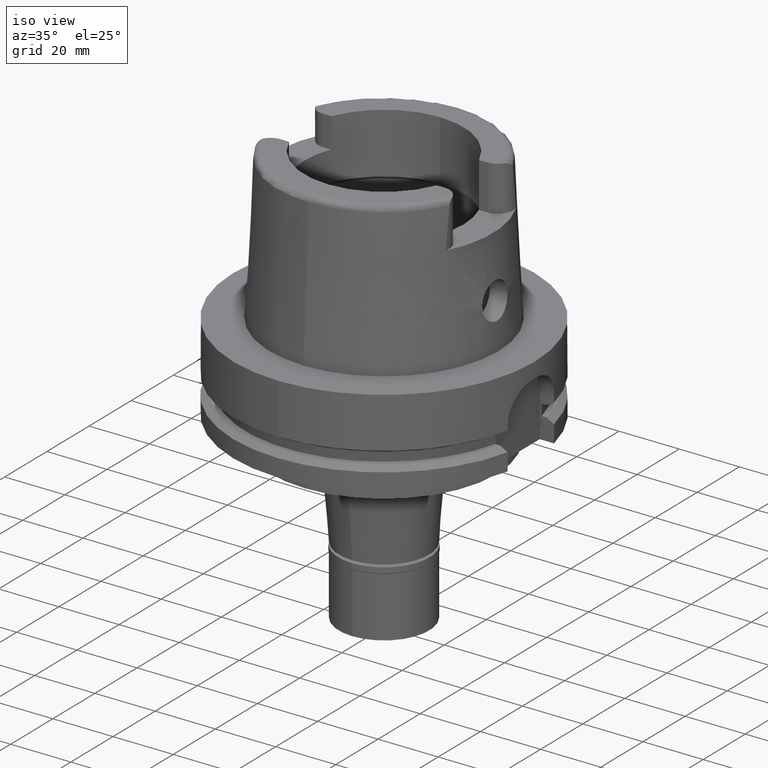
[diagram: clean part render]
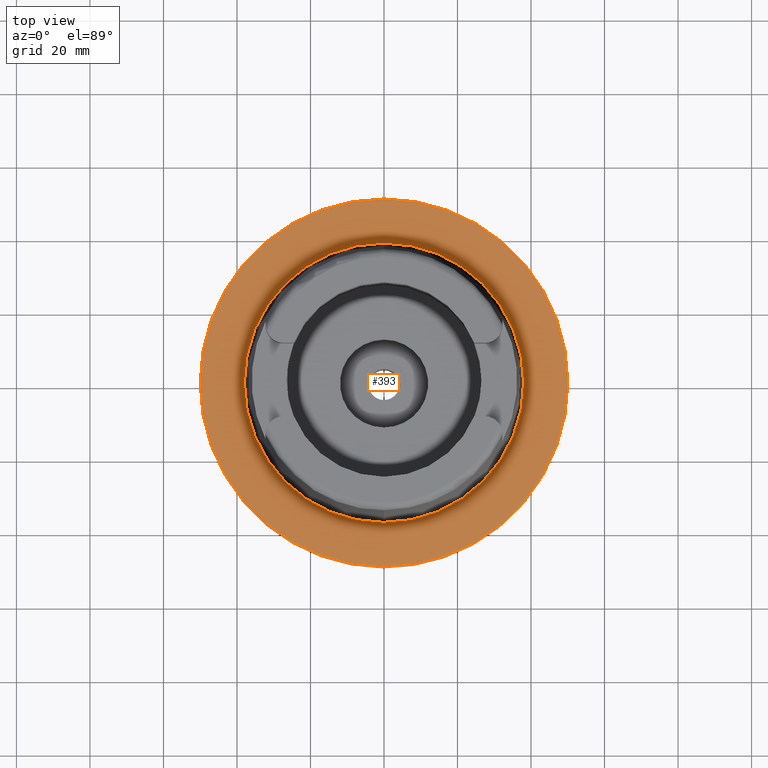
[diagram: tour spotlight — one face highlighted and labeled with its STEP entity id]
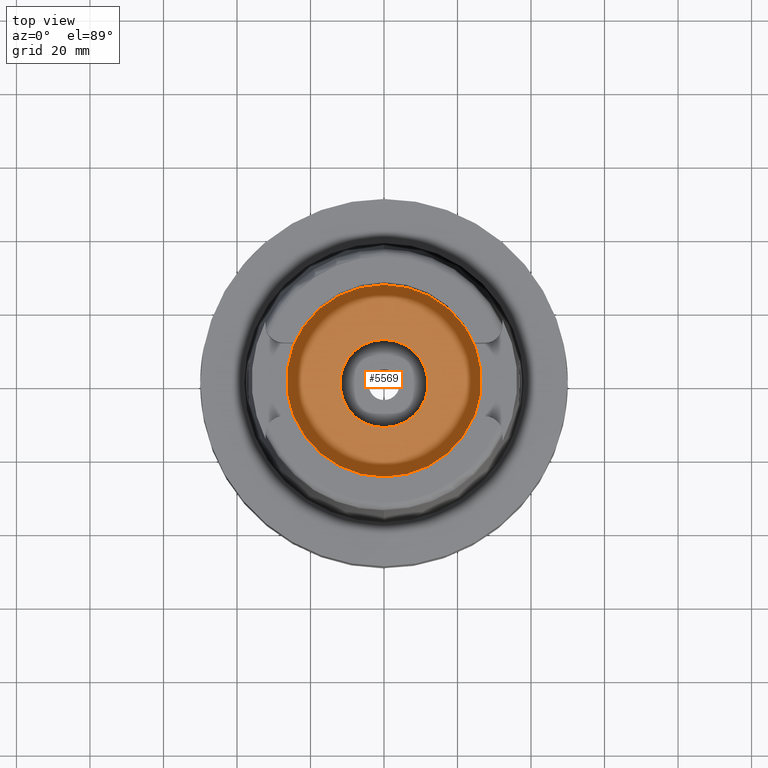
[diagram: tour spotlight — one face highlighted and labeled with its STEP entity id]
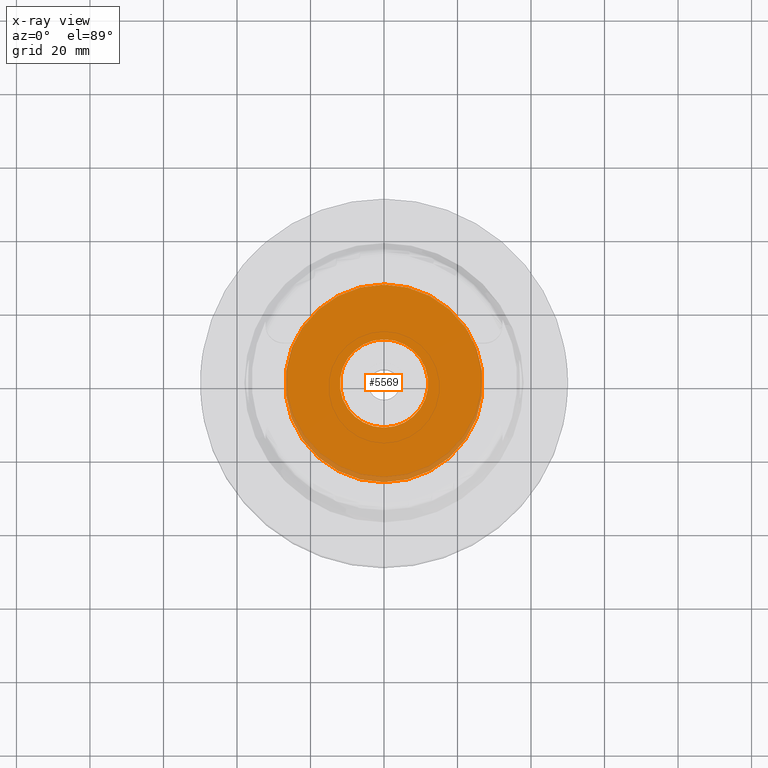
[diagram: x-ray of the same camera — body ghosted, this tour face saturated]
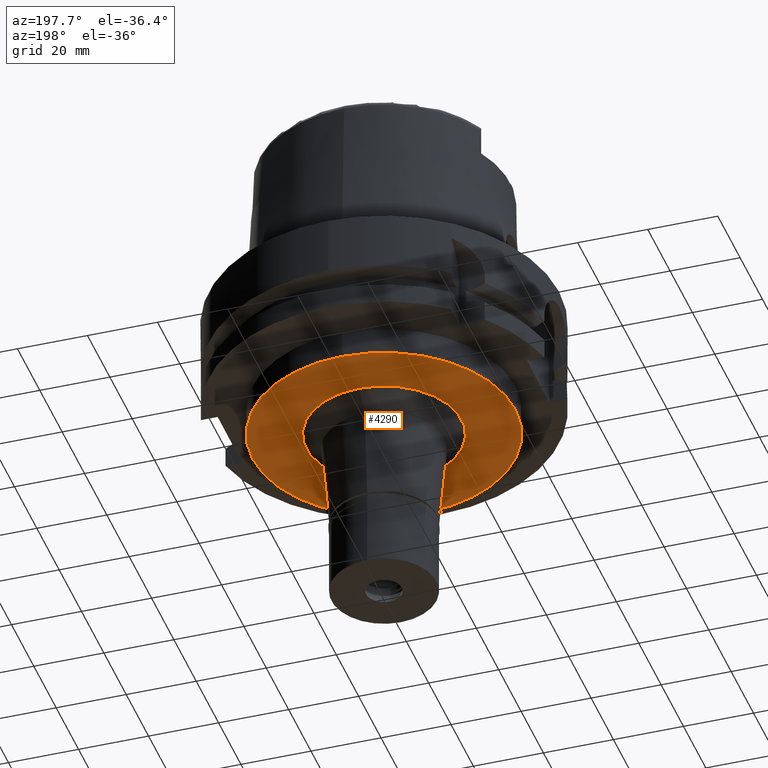
[diagram: tour spotlight — one face highlighted and labeled with its STEP entity id]
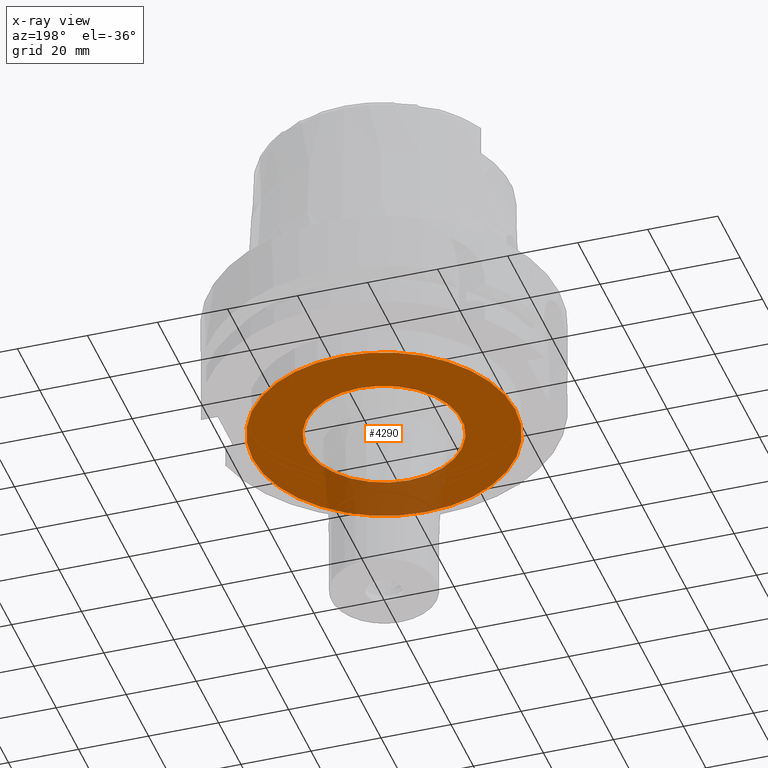
[diagram: x-ray of the same camera — body ghosted, this tour face saturated]
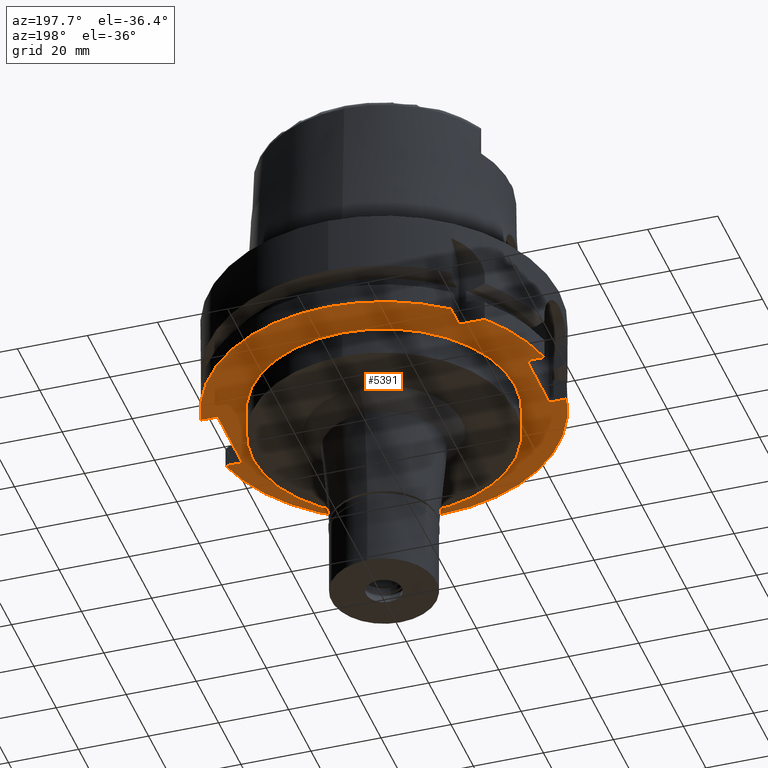
[diagram: tour spotlight — one face highlighted and labeled with its STEP entity id]
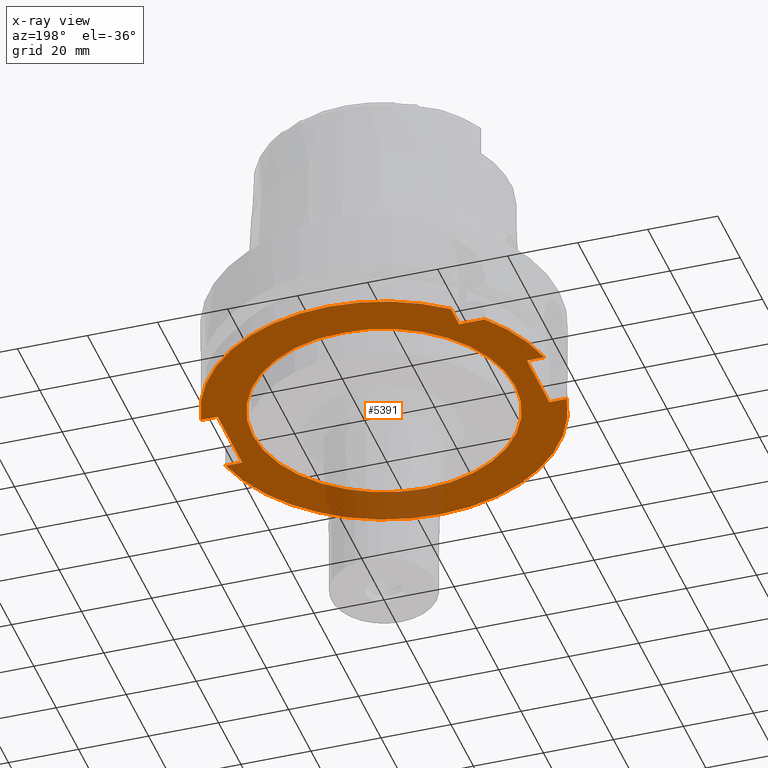
[diagram: x-ray of the same camera — body ghosted, this tour face saturated]
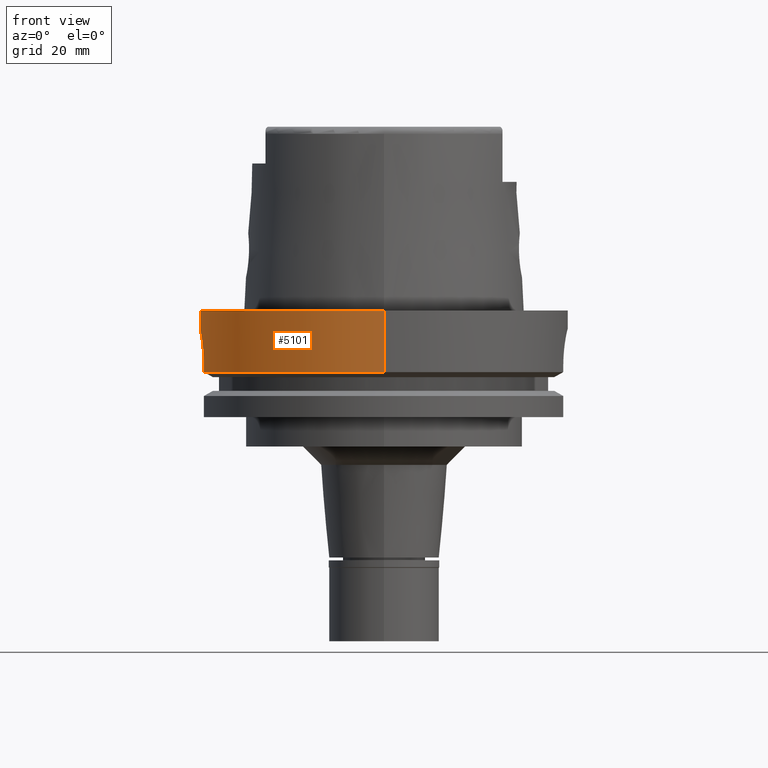
[diagram: tour spotlight — one face highlighted and labeled with its STEP entity id]
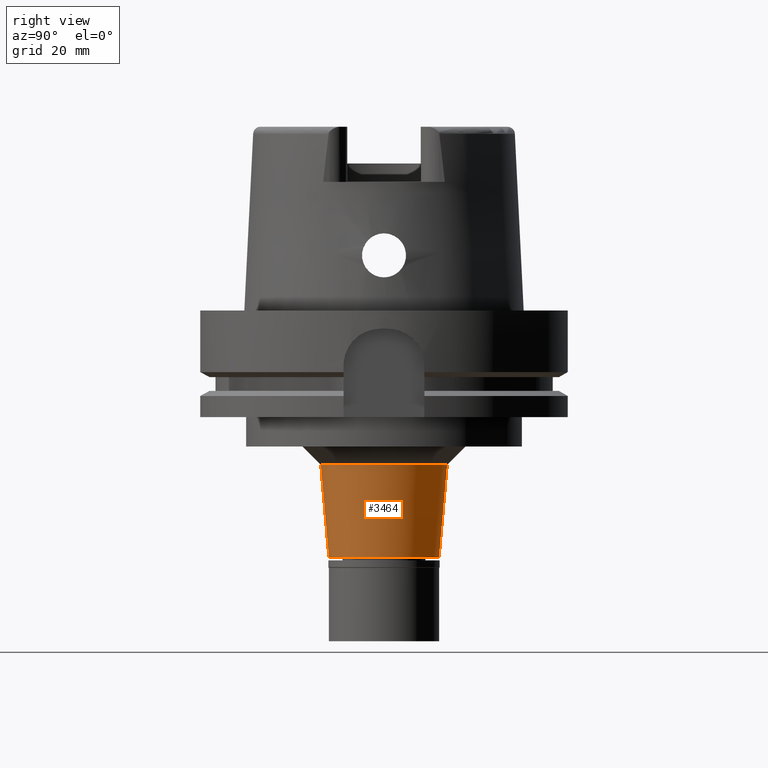
[diagram: tour spotlight — one face highlighted and labeled with its STEP entity id]
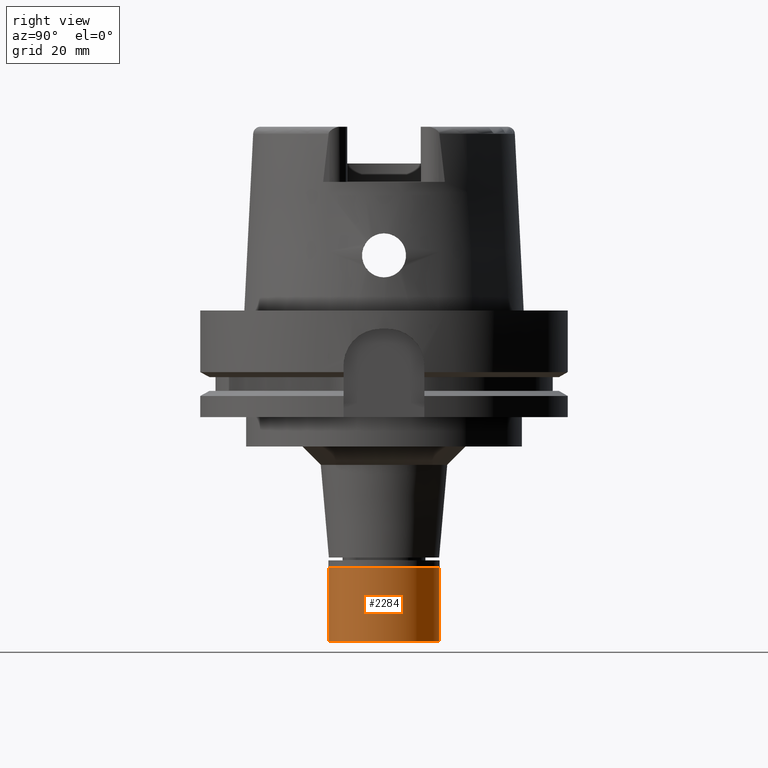
[diagram: tour spotlight — one face highlighted and labeled with its STEP entity id]
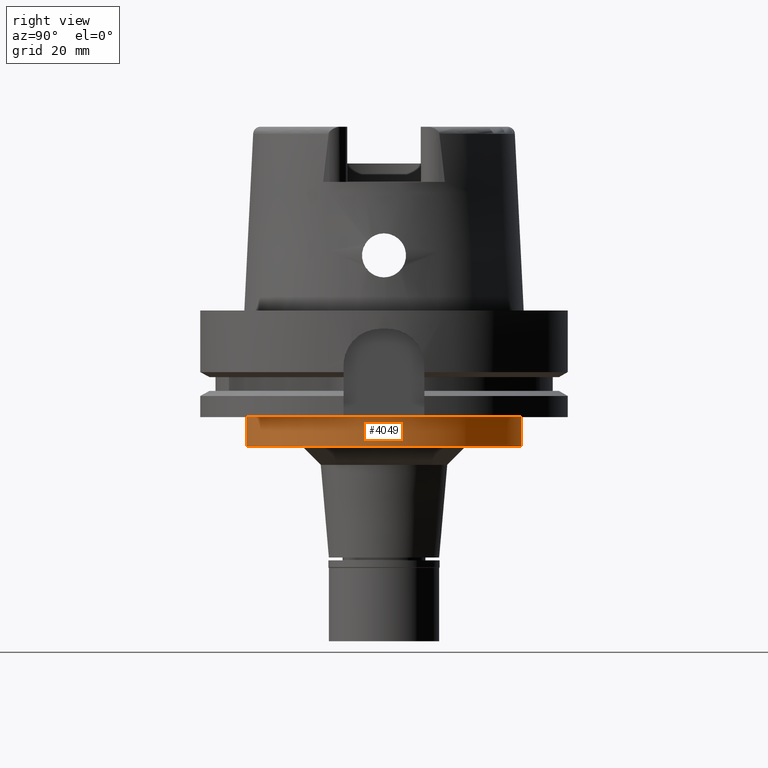
[diagram: tour spotlight — one face highlighted and labeled with its STEP entity id]
A machine part: a face-by-face anatomy tour. The part has 126 B-rep faces; the first image is the clean iso view, then the 8 largest visible faces are spotlighted one at a time (largest first), each with its STEP entity span.

Face 1 — top view, entity #393. In plain terms, the highlighted planar face has unit normal (0, 0, 1).
Definition (entity closure, byte-faithful):
#166 = ORIENTED_EDGE ( 'NONE', *, *, #4457, .F. ) ;
#393 = ADVANCED_FACE ( 'NONE', ( #5259, #3013 ), #1745, .T. ) ;
#524 = AXIS2_PLACEMENT_3D ( 'NONE', #1019, #2724, #4397 ) ;
#562 = EDGE_CURVE ( 'NONE', #2177, #1272, #5425, .T. ) ;
#666 = ORIENTED_EDGE ( 'NONE', *, *, #968, .F. ) ;
#743 = EDGE_LOOP ( 'NONE', ( #666, #1786 ) ) ;
#968 = EDGE_CURVE ( 'NONE', #1272, #2177, #1612, .T. ) ;
#985 = CARTESIAN_POINT ( 'NONE',  ( 0.0000000000000000000, -50.00000000000000000, 1.278976924367999843E-13 ) ) ;
#1019 = CARTESIAN_POINT ( 'NONE',  ( 0.0000000000000000000, 0.0000000000000000000, 1.278976924367999843E-13 ) ) ;
#1265 = CARTESIAN_POINT ( 'NONE',  ( 0.0000000000000000000, 50.00000000000000000, 9.000207986294999520E-14 ) ) ;
#1272 = VERTEX_POINT ( 'NONE', #1265 ) ;
#1285 = DIRECTION ( 'NONE',  ( 0.0000000000000000000, 0.0000000000000000000, 1.000000000000000000 ) ) ;
#1371 = CARTESIAN_POINT ( 'NONE',  ( 0.0000000000000000000, 0.0000000000000000000, 1.023181539494999863E-12 ) ) ;
#1400 = CIRCLE ( 'NONE', #4573, 38.00001658251999714 ) ;
#1424 = DIRECTION ( 'NONE',  ( 0.0000000000000000000, 0.0000000000000000000, 1.000000000000000000 ) ) ;
#1538 = ORIENTED_EDGE ( 'NONE', *, *, #3697, .F. ) ;
#1612 = CIRCLE ( 'NONE', #5523, 50.00000000000000000 ) ;
#1745 = PLANE ( 'NONE',  #1783 ) ;
#1783 = AXIS2_PLACEMENT_3D ( 'NONE', #4695, #1285, #3410 ) ;
#1786 = ORIENTED_EDGE ( 'NONE', *, *, #562, .F. ) ;
#1913 = EDGE_LOOP ( 'NONE', ( #1538, #166 ) ) ;
#1967 = CARTESIAN_POINT ( 'NONE',  ( 0.0000000000000000000, 0.0000000000000000000, 1.023181539494999863E-12 ) ) ;
#2177 = VERTEX_POINT ( 'NONE', #985 ) ;
#2242 = CARTESIAN_POINT ( 'NONE',  ( 0.0000000000000000000, -38.00001658251999714, 6.892264536873000076E-13 ) ) ;
#2643 = DIRECTION ( 'NONE',  ( 0.0000000000000000000, -1.000000000000000000, 0.0000000000000000000 ) ) ;
#2724 = DIRECTION ( 'NONE',  ( 0.0000000000000000000, 0.0000000000000000000, -1.000000000000000000 ) ) ;
#3013 = FACE_BOUND ( 'NONE', #1913, .T. ) ;
#3125 = AXIS2_PLACEMENT_3D ( 'NONE', #1371, #1424, #2643 ) ;
#3410 = DIRECTION ( 'NONE',  ( 1.000000000000000000, 0.0000000000000000000, 0.0000000000000000000 ) ) ;
#3554 = DIRECTION ( 'NONE',  ( 0.0000000000000000000, 0.0000000000000000000, -1.000000000000000000 ) ) ;
#3682 = DIRECTION ( 'NONE',  ( 0.0000000000000000000, 0.0000000000000000000, 1.000000000000000000 ) ) ;
#3697 = EDGE_CURVE ( 'NONE', #4163, #4109, #1400, .T. ) ;
#4109 = VERTEX_POINT ( 'NONE', #2242 ) ;
#4163 = VERTEX_POINT ( 'NONE', #5437 ) ;
#4397 = DIRECTION ( 'NONE',  ( 0.0000000000000000000, -1.000000000000000000, 0.0000000000000000000 ) ) ;
#4402 = CIRCLE ( 'NONE', #3125, 38.00001658251999714 ) ;
#4457 = EDGE_CURVE ( 'NONE', #4109, #4163, #4402, .T. ) ;
#4462 = CARTESIAN_POINT ( 'NONE',  ( 0.0000000000000000000, 0.0000000000000000000, 1.278976924367999843E-13 ) ) ;
#4573 = AXIS2_PLACEMENT_3D ( 'NONE', #1967, #3682, #5025 ) ;
#4695 = CARTESIAN_POINT ( 'NONE',  ( 0.0000000000000000000, 0.0000000000000000000, 1.421085471519999843E-14 ) ) ;
#5025 = DIRECTION ( 'NONE',  ( 0.0000000000000000000, 1.000000000000000000, 0.0000000000000000000 ) ) ;
#5259 = FACE_OUTER_BOUND ( 'NONE', #743, .T. ) ;
#5297 = DIRECTION ( 'NONE',  ( 0.0000000000000000000, 1.000000000000000000, 0.0000000000000000000 ) ) ;
#5425 = CIRCLE ( 'NONE', #524, 50.00000000000000000 ) ;
#5437 = CARTESIAN_POINT ( 'NONE',  ( 0.0000000000000000000, 38.00001658251999714, 1.023181539494999863E-12 ) ) ;
#5523 = AXIS2_PLACEMENT_3D ( 'NONE', #4462, #3554, #5297 ) ;

Face 2 — top view, entity #5569. An x-ray twin of the same camera follows (body ghosted, this face saturated) — the face is partly hidden behind the body. In plain terms, the highlighted planar face has unit normal (0, 0, 1).
Definition (entity closure, byte-faithful):
#121 = DIRECTION ( 'NONE',  ( 0.0000000000000000000, -1.000000000000000000, 0.0000000000000000000 ) ) ;
#235 = EDGE_LOOP ( 'NONE', ( #651, #2227 ) ) ;
#276 = CARTESIAN_POINT ( 'NONE',  ( 0.0000000000000000000, 0.0000000000000000000, -12.44999999999999929 ) ) ;
#651 = ORIENTED_EDGE ( 'NONE', *, *, #3813, .F. ) ;
#698 = FACE_OUTER_BOUND ( 'NONE', #235, .T. ) ;
#771 = DIRECTION ( 'NONE',  ( 0.0000000000000000000, 0.0000000000000000000, -1.000000000000000000 ) ) ;
#816 = DIRECTION ( 'NONE',  ( 1.000000000000000000, 0.0000000000000000000, 0.0000000000000000000 ) ) ;
#1137 = AXIS2_PLACEMENT_3D ( 'NONE', #1946, #1917, #121 ) ;
#1255 = DIRECTION ( 'NONE',  ( 0.0000000000000000000, 1.000000000000000000, 0.0000000000000000000 ) ) ;
#1299 = VERTEX_POINT ( 'NONE', #4267 ) ;
#1609 = DIRECTION ( 'NONE',  ( 0.0000000000000000000, 0.0000000000000000000, 1.000000000000000000 ) ) ;
#1698 = AXIS2_PLACEMENT_3D ( 'NONE', #276, #4204, #4703 ) ;
#1917 = DIRECTION ( 'NONE',  ( 0.0000000000000000000, 0.0000000000000000000, -1.000000000000000000 ) ) ;
#1946 = CARTESIAN_POINT ( 'NONE',  ( 0.0000000000000000000, 0.0000000000000000000, -12.44999999999999929 ) ) ;
#2030 = CARTESIAN_POINT ( 'NONE',  ( 0.0000000000000000000, 0.0000000000000000000, -12.44999999999999929 ) ) ;
#2227 = ORIENTED_EDGE ( 'NONE', *, *, #5303, .F. ) ;
#2259 = CIRCLE ( 'NONE', #2886, 12.00000000000000000 ) ;
#2392 = EDGE_CURVE ( 'NONE', #5279, #4741, #2259, .T. ) ;
#2552 = ORIENTED_EDGE ( 'NONE', *, *, #5537, .F. ) ;
#2676 = CIRCLE ( 'NONE', #1137, 26.89999999999999858 ) ;
#2880 = PLANE ( 'NONE',  #2960 ) ;
#2886 = AXIS2_PLACEMENT_3D ( 'NONE', #3277, #5041, #4123 ) ;
#2960 = AXIS2_PLACEMENT_3D ( 'NONE', #2030, #1609, #816 ) ;
#3247 = CARTESIAN_POINT ( 'NONE',  ( 0.0000000000000000000, -12.00000000000000000, -12.44999999999999929 ) ) ;
#3277 = CARTESIAN_POINT ( 'NONE',  ( 0.0000000000000000000, 0.0000000000000000000, -12.44999999999999929 ) ) ;
#3813 = EDGE_CURVE ( 'NONE', #1299, #5493, #4942, .T. ) ;
#4123 = DIRECTION ( 'NONE',  ( 0.0000000000000000000, -1.000000000000000000, 0.0000000000000000000 ) ) ;
#4151 = FACE_BOUND ( 'NONE', #4502, .T. ) ;
#4204 = DIRECTION ( 'NONE',  ( 0.0000000000000000000, 0.0000000000000000000, 1.000000000000000000 ) ) ;
#4210 = ORIENTED_EDGE ( 'NONE', *, *, #2392, .F. ) ;
#4239 = CARTESIAN_POINT ( 'NONE',  ( 0.0000000000000000000, -26.89999999999999858, -12.44999999999999929 ) ) ;
#4267 = CARTESIAN_POINT ( 'NONE',  ( 0.0000000000000000000, 26.89999999999999858, -12.44999999999999929 ) ) ;
#4494 = CARTESIAN_POINT ( 'NONE',  ( 0.0000000000000000000, 12.00000000000000000, -12.44999999999999929 ) ) ;
#4502 = EDGE_LOOP ( 'NONE', ( #2552, #4210 ) ) ;
#4590 = CIRCLE ( 'NONE', #1698, 12.00000000000000000 ) ;
#4673 = AXIS2_PLACEMENT_3D ( 'NONE', #5176, #771, #1255 ) ;
#4703 = DIRECTION ( 'NONE',  ( 0.0000000000000000000, 1.000000000000000000, 0.0000000000000000000 ) ) ;
#4741 = VERTEX_POINT ( 'NONE', #4494 ) ;
#4942 = CIRCLE ( 'NONE', #4673, 26.89999999999999858 ) ;
#5041 = DIRECTION ( 'NONE',  ( 0.0000000000000000000, 0.0000000000000000000, 1.000000000000000000 ) ) ;
#5176 = CARTESIAN_POINT ( 'NONE',  ( 0.0000000000000000000, 0.0000000000000000000, -12.44999999999999929 ) ) ;
#5279 = VERTEX_POINT ( 'NONE', #3247 ) ;
#5303 = EDGE_CURVE ( 'NONE', #5493, #1299, #2676, .T. ) ;
#5493 = VERTEX_POINT ( 'NONE', #4239 ) ;
#5537 = EDGE_CURVE ( 'NONE', #4741, #5279, #4590, .T. ) ;
#5569 = ADVANCED_FACE ( 'NONE', ( #698, #4151 ), #2880, .T. ) ;

Face 3 — auxiliary view, entity #4290. An x-ray twin of the same camera follows (body ghosted, this face saturated) — the face is partly hidden behind the body. In plain terms, the highlighted planar face has unit normal (0, 0, 1).
Definition (entity closure, byte-faithful):
#135 = FACE_OUTER_BOUND ( 'NONE', #2000, .T. ) ;
#221 = CARTESIAN_POINT ( 'NONE',  ( 0.0000000000000000000, 0.0000000000000000000, -37.00000000000000000 ) ) ;
#237 = CIRCLE ( 'NONE', #3758, 37.50000000000000000 ) ;
#253 = AXIS2_PLACEMENT_3D ( 'NONE', #3784, #2029, #2965 ) ;
#531 = CIRCLE ( 'NONE', #253, 22.20471432084999819 ) ;
#544 = DIRECTION ( 'NONE',  ( 0.0000000000000000000, 1.000000000000000000, 0.0000000000000000000 ) ) ;
#785 = AXIS2_PLACEMENT_3D ( 'NONE', #221, #4965, #1076 ) ;
#1021 = DIRECTION ( 'NONE',  ( 0.0000000000000000000, 0.0000000000000000000, 1.000000000000000000 ) ) ;
#1068 = CARTESIAN_POINT ( 'NONE',  ( 0.0000000000000000000, 0.0000000000000000000, -37.00000000000000000 ) ) ;
#1076 = DIRECTION ( 'NONE',  ( 1.000000000000000000, 0.0000000000000000000, 0.0000000000000000000 ) ) ;
#1280 = EDGE_CURVE ( 'NONE', #3118, #4522, #531, .T. ) ;
#1425 = DIRECTION ( 'NONE',  ( 0.0000000000000000000, -1.000000000000000000, 0.0000000000000000000 ) ) ;
#1458 = EDGE_CURVE ( 'NONE', #4708, #1667, #4236, .T. ) ;
#1479 = CARTESIAN_POINT ( 'NONE',  ( 0.0000000000000000000, -37.50000000000000000, -37.00000000000000000 ) ) ;
#1667 = VERTEX_POINT ( 'NONE', #4934 ) ;
#1800 = CIRCLE ( 'NONE', #2164, 22.20471432084999819 ) ;
#2000 = EDGE_LOOP ( 'NONE', ( #2524, #2868 ) ) ;
#2029 = DIRECTION ( 'NONE',  ( 0.0000000000000000000, 0.0000000000000000000, -1.000000000000000000 ) ) ;
#2118 = EDGE_CURVE ( 'NONE', #4522, #3118, #1800, .T. ) ;
#2164 = AXIS2_PLACEMENT_3D ( 'NONE', #1068, #2717, #544 ) ;
#2301 = CARTESIAN_POINT ( 'NONE',  ( 0.0000000000000000000, 0.0000000000000000000, -37.00000000000000000 ) ) ;
#2524 = ORIENTED_EDGE ( 'NONE', *, *, #4398, .F. ) ;
#2717 = DIRECTION ( 'NONE',  ( 0.0000000000000000000, 0.0000000000000000000, -1.000000000000000000 ) ) ;
#2727 = CARTESIAN_POINT ( 'NONE',  ( 0.0000000000000000000, 22.20471432084999819, -37.00000000000000000 ) ) ;
#2809 = PLANE ( 'NONE',  #785 ) ;
#2868 = ORIENTED_EDGE ( 'NONE', *, *, #1458, .F. ) ;
#2877 = AXIS2_PLACEMENT_3D ( 'NONE', #3684, #4083, #1425 ) ;
#2879 = ORIENTED_EDGE ( 'NONE', *, *, #2118, .F. ) ;
#2965 = DIRECTION ( 'NONE',  ( 0.0000000000000000000, -1.000000000000000000, 0.0000000000000000000 ) ) ;
#2995 = CARTESIAN_POINT ( 'NONE',  ( 0.0000000000000000000, -22.20471432084999819, -37.00000000000000000 ) ) ;
#3118 = VERTEX_POINT ( 'NONE', #2995 ) ;
#3227 = FACE_BOUND ( 'NONE', #4342, .T. ) ;
#3568 = DIRECTION ( 'NONE',  ( 0.0000000000000000000, 1.000000000000000000, 0.0000000000000000000 ) ) ;
#3684 = CARTESIAN_POINT ( 'NONE',  ( 0.0000000000000000000, 0.0000000000000000000, -37.00000000000000000 ) ) ;
#3758 = AXIS2_PLACEMENT_3D ( 'NONE', #2301, #1021, #3568 ) ;
#3784 = CARTESIAN_POINT ( 'NONE',  ( 0.0000000000000000000, 0.0000000000000000000, -37.00000000000000000 ) ) ;
#4083 = DIRECTION ( 'NONE',  ( 0.0000000000000000000, 0.0000000000000000000, 1.000000000000000000 ) ) ;
#4132 = ORIENTED_EDGE ( 'NONE', *, *, #1280, .F. ) ;
#4236 = CIRCLE ( 'NONE', #2877, 37.50000000000000000 ) ;
#4290 = ADVANCED_FACE ( 'NONE', ( #135, #3227 ), #2809, .F. ) ;
#4342 = EDGE_LOOP ( 'NONE', ( #2879, #4132 ) ) ;
#4398 = EDGE_CURVE ( 'NONE', #1667, #4708, #237, .T. ) ;
#4522 = VERTEX_POINT ( 'NONE', #2727 ) ;
#4708 = VERTEX_POINT ( 'NONE', #1479 ) ;
#4934 = CARTESIAN_POINT ( 'NONE',  ( 0.0000000000000000000, 37.50000000000000000, -37.00000000000000000 ) ) ;
#4965 = DIRECTION ( 'NONE',  ( 0.0000000000000000000, 0.0000000000000000000, 1.000000000000000000 ) ) ;

Face 4 — auxiliary view, entity #5391. An x-ray twin of the same camera follows (body ghosted, this face saturated) — the face is partly hidden behind the body. In plain terms, the highlighted planar face has unit normal (0, 0, 1).
Definition (entity closure, byte-faithful):
#249 = CARTESIAN_POINT ( 'NONE',  ( -44.00000000000000000, -10.00000000000000000, -29.00000000000000000 ) ) ;
#278 = EDGE_CURVE ( 'NONE', #4915, #1673, #2904, .T. ) ;
#515 = DIRECTION ( 'NONE',  ( 0.0000000000000000000, 0.0000000000000000000, 1.000000000000000000 ) ) ;
#538 = CARTESIAN_POINT ( 'NONE',  ( -48.98979485565999425, -10.00000000000000000, -29.00000000000000000 ) ) ;
#554 = DIRECTION ( 'NONE',  ( 0.0000000000000000000, 1.000000000000000000, 0.0000000000000000000 ) ) ;
#566 = DIRECTION ( 'NONE',  ( -1.000000000000000000, 4.627973610177000155E-14, 0.0000000000000000000 ) ) ;
#616 = CARTESIAN_POINT ( 'NONE',  ( 44.00000000000000000, 11.00000000000000000, -29.00000000000000000 ) ) ;
#685 = VERTEX_POINT ( 'NONE', #1386 ) ;
#700 = EDGE_CURVE ( 'NONE', #3310, #4915, #1470, .T. ) ;
#749 = DIRECTION ( 'NONE',  ( 1.000000000000000000, 1.711257052401000108E-14, 0.0000000000000000000 ) ) ;
#775 = CIRCLE ( 'NONE', #2225, 37.50000000000000000 ) ;
#786 = CIRCLE ( 'NONE', #3580, 37.50000000000000000 ) ;
#803 = VECTOR ( 'NONE', #3748, 1000.000000000000000 ) ;
#907 = ORIENTED_EDGE ( 'NONE', *, *, #1136, .F. ) ;
#948 = VERTEX_POINT ( 'NONE', #3163 ) ;
#982 = DIRECTION ( 'NONE',  ( 4.798503851105999980E-14, 1.000000000000000000, 0.0000000000000000000 ) ) ;
#1030 = DIRECTION ( 'NONE',  ( 1.000000000000000000, 0.0000000000000000000, 0.0000000000000000000 ) ) ;
#1033 = EDGE_CURVE ( 'NONE', #948, #4280, #1894, .T. ) ;
#1035 = CARTESIAN_POINT ( 'NONE',  ( -44.00000000000000000, 10.00000000000000000, -29.00000000000000000 ) ) ;
#1069 = VECTOR ( 'NONE', #566, 1000.000000000000000 ) ;
#1089 = FACE_OUTER_BOUND ( 'NONE', #5612, .T. ) ;
#1090 = LINE ( 'NONE', #616, #803 ) ;
#1136 = EDGE_CURVE ( 'NONE', #3310, #685, #1090, .T. ) ;
#1211 = EDGE_CURVE ( 'NONE', #685, #4280, #4700, .T. ) ;
#1342 = DIRECTION ( 'NONE',  ( 0.0000000000000000000, 0.0000000000000000000, -1.000000000000000000 ) ) ;
#1386 = CARTESIAN_POINT ( 'NONE',  ( 48.77499359303000404, 11.00000000000000000, -29.00000000000000000 ) ) ;
#1452 = EDGE_CURVE ( 'NONE', #948, #3955, #3625, .T. ) ;
#1463 = CARTESIAN_POINT ( 'NONE',  ( 0.0000000000000000000, 0.0000000000000000000, -29.00000000000000000 ) ) ;
#1470 = LINE ( 'NONE', #1867, #5614 ) ;
#1471 = ORIENTED_EDGE ( 'NONE', *, *, #3429, .F. ) ;
#1478 = LINE ( 'NONE', #3009, #5214 ) ;
#1483 = ORIENTED_EDGE ( 'NONE', *, *, #5415, .F. ) ;
#1673 = VERTEX_POINT ( 'NONE', #1928 ) ;
#1833 = CARTESIAN_POINT ( 'NONE',  ( -31.50000000000000000, 31.50000000000000000, -29.00000000000000000 ) ) ;
#1867 = CARTESIAN_POINT ( 'NONE',  ( 44.00000000000000000, 11.00000000000000000, -29.00000000000000000 ) ) ;
#1880 = DIRECTION ( 'NONE',  ( 0.0000000000000000000, 0.0000000000000000000, 1.000000000000000000 ) ) ;
#1894 = LINE ( 'NONE', #1833, #4602 ) ;
#1928 = CARTESIAN_POINT ( 'NONE',  ( 48.77499359303000404, -11.00000000000000000, -29.00000000000000000 ) ) ;
#2049 = EDGE_CURVE ( 'NONE', #2129, #3022, #2291, .T. ) ;
#2098 = CARTESIAN_POINT ( 'NONE',  ( -44.00000000000000000, -10.00000000000000000, -29.00000000000000000 ) ) ;
#2129 = VERTEX_POINT ( 'NONE', #1035 ) ;
#2225 = AXIS2_PLACEMENT_3D ( 'NONE', #4857, #1342, #554 ) ;
#2267 = DIRECTION ( 'NONE',  ( 0.0000000000000000000, 1.000000000000000000, 0.0000000000000000000 ) ) ;
#2286 = FACE_BOUND ( 'NONE', #2977, .T. ) ;
#2291 = LINE ( 'NONE', #3534, #1069 ) ;
#2311 = CIRCLE ( 'NONE', #2674, 50.00000000000000711 ) ;
#2388 = DIRECTION ( 'NONE',  ( -1.000000000000000000, -4.798503851105999980E-14, 0.0000000000000000000 ) ) ;
#2394 = EDGE_CURVE ( 'NONE', #4995, #2129, #2885, .T. ) ;
#2411 = ORIENTED_EDGE ( 'NONE', *, *, #4080, .F. ) ;
#2449 = DIRECTION ( 'NONE',  ( 0.0000000000000000000, -1.000000000000000000, 0.0000000000000000000 ) ) ;
#2494 = CIRCLE ( 'NONE', #3934, 50.00000000000000000 ) ;
#2577 = ORIENTED_EDGE ( 'NONE', *, *, #3732, .F. ) ;
#2659 = CARTESIAN_POINT ( 'NONE',  ( 0.0000000000000000000, 0.0000000000000000000, -29.00000000000000000 ) ) ;
#2674 = AXIS2_PLACEMENT_3D ( 'NONE', #2659, #515, #3908 ) ;
#2699 = ORIENTED_EDGE ( 'NONE', *, *, #1452, .F. ) ;
#2761 = DIRECTION ( 'NONE',  ( 0.0000000000000000000, 0.0000000000000000000, -1.000000000000000000 ) ) ;
#2842 = CARTESIAN_POINT ( 'NONE',  ( -31.50000000000000000, 31.50000000000000000, -29.00000000000000000 ) ) ;
#2885 = LINE ( 'NONE', #249, #3426 ) ;
#2904 = LINE ( 'NONE', #4636, #3046 ) ;
#2977 = EDGE_LOOP ( 'NONE', ( #1471, #1483 ) ) ;
#2999 = CARTESIAN_POINT ( 'NONE',  ( 44.00000000000000000, -11.00000000000000000, -29.00000000000000000 ) ) ;
#3009 = CARTESIAN_POINT ( 'NONE',  ( -44.00000000000000000, -10.00000000000000000, -29.00000000000000000 ) ) ;
#3022 = VERTEX_POINT ( 'NONE', #5478 ) ;
#3043 = ORIENTED_EDGE ( 'NONE', *, *, #1211, .F. ) ;
#3046 = VECTOR ( 'NONE', #749, 1000.000000000000000 ) ;
#3163 = CARTESIAN_POINT ( 'NONE',  ( -31.50000000000000000, 31.50000000000000000, -29.00000000000000000 ) ) ;
#3166 = DIRECTION ( 'NONE',  ( 0.0000000000000000000, 0.0000000000000000000, 1.000000000000000000 ) ) ;
#3186 = DIRECTION ( 'NONE',  ( 0.0000000000000000000, 0.0000000000000000000, 1.000000000000000000 ) ) ;
#3310 = VERTEX_POINT ( 'NONE', #3860 ) ;
#3426 = VECTOR ( 'NONE', #3750, 1000.000000000000000 ) ;
#3429 = EDGE_CURVE ( 'NONE', #3716, #4181, #775, .T. ) ;
#3527 = EDGE_CURVE ( 'NONE', #5113, #1673, #2494, .T. ) ;
#3534 = CARTESIAN_POINT ( 'NONE',  ( -44.00000000000000000, 10.00000000000000000, -29.00000000000000000 ) ) ;
#3577 = DIRECTION ( 'NONE',  ( 0.0000000000000000000, -1.000000000000000000, 0.0000000000000000000 ) ) ;
#3580 = AXIS2_PLACEMENT_3D ( 'NONE', #4523, #2761, #3577 ) ;
#3588 = DIRECTION ( 'NONE',  ( 0.0000000000000000000, -1.000000000000000000, 0.0000000000000000000 ) ) ;
#3623 = CARTESIAN_POINT ( 'NONE',  ( 0.0000000000000000000, 37.50000000000000000, -29.00000000000000000 ) ) ;
#3625 = LINE ( 'NONE', #2842, #5336 ) ;
#3661 = ORIENTED_EDGE ( 'NONE', *, *, #3527, .F. ) ;
#3681 = AXIS2_PLACEMENT_3D ( 'NONE', #4417, #3166, #2267 ) ;
#3716 = VERTEX_POINT ( 'NONE', #3623 ) ;
#3732 = EDGE_CURVE ( 'NONE', #4995, #5113, #1478, .T. ) ;
#3748 = DIRECTION ( 'NONE',  ( 1.000000000000000000, -1.785659532940000023E-14, 0.0000000000000000000 ) ) ;
#3750 = DIRECTION ( 'NONE',  ( 0.0000000000000000000, 1.000000000000000000, 0.0000000000000000000 ) ) ;
#3860 = CARTESIAN_POINT ( 'NONE',  ( 44.00000000000000000, 11.00000000000000000, -29.00000000000000000 ) ) ;
#3908 = DIRECTION ( 'NONE',  ( -0.7765951326141738997, 0.6299999999999789102, 0.0000000000000000000 ) ) ;
#3934 = AXIS2_PLACEMENT_3D ( 'NONE', #4512, #1880, #2449 ) ;
#3955 = VERTEX_POINT ( 'NONE', #4307 ) ;
#3983 = ORIENTED_EDGE ( 'NONE', *, *, #278, .T. ) ;
#4080 = EDGE_CURVE ( 'NONE', #3955, #3022, #2311, .T. ) ;
#4181 = VERTEX_POINT ( 'NONE', #4905 ) ;
#4280 = VERTEX_POINT ( 'NONE', #4446 ) ;
#4281 = DIRECTION ( 'NONE',  ( -1.000000000000000000, -4.627973610177000155E-14, 0.0000000000000000000 ) ) ;
#4307 = CARTESIAN_POINT ( 'NONE',  ( -38.82975663071000128, 31.50000000000000000, -29.00000000000000000 ) ) ;
#4338 = ORIENTED_EDGE ( 'NONE', *, *, #2394, .T. ) ;
#4417 = CARTESIAN_POINT ( 'NONE',  ( 0.0000000000000000000, 0.0000000000000000000, -29.00000000000000000 ) ) ;
#4446 = CARTESIAN_POINT ( 'NONE',  ( -31.50000000000000000, 38.82975663071000128, -29.00000000000000000 ) ) ;
#4512 = CARTESIAN_POINT ( 'NONE',  ( 0.0000000000000000000, 0.0000000000000000000, -29.00000000000000000 ) ) ;
#4523 = CARTESIAN_POINT ( 'NONE',  ( 0.0000000000000000000, 0.0000000000000000000, -29.00000000000000000 ) ) ;
#4602 = VECTOR ( 'NONE', #982, 1000.000000000000000 ) ;
#4636 = CARTESIAN_POINT ( 'NONE',  ( 44.00000000000000000, -11.00000000000000000, -29.00000000000000000 ) ) ;
#4647 = ORIENTED_EDGE ( 'NONE', *, *, #700, .T. ) ;
#4700 = CIRCLE ( 'NONE', #3681, 50.00000000000000000 ) ;
#4857 = CARTESIAN_POINT ( 'NONE',  ( 0.0000000000000000000, 0.0000000000000000000, -29.00000000000000000 ) ) ;
#4905 = CARTESIAN_POINT ( 'NONE',  ( 0.0000000000000000000, -37.50000000000000000, -29.00000000000000000 ) ) ;
#4915 = VERTEX_POINT ( 'NONE', #2999 ) ;
#4944 = ORIENTED_EDGE ( 'NONE', *, *, #2049, .T. ) ;
#4949 = AXIS2_PLACEMENT_3D ( 'NONE', #1463, #3186, #1030 ) ;
#4995 = VERTEX_POINT ( 'NONE', #2098 ) ;
#5113 = VERTEX_POINT ( 'NONE', #538 ) ;
#5214 = VECTOR ( 'NONE', #4281, 1000.000000000000000 ) ;
#5307 = ORIENTED_EDGE ( 'NONE', *, *, #1033, .T. ) ;
#5336 = VECTOR ( 'NONE', #2388, 1000.000000000000000 ) ;
#5362 = PLANE ( 'NONE',  #4949 ) ;
#5391 = ADVANCED_FACE ( 'NONE', ( #1089, #2286 ), #5362, .F. ) ;
#5415 = EDGE_CURVE ( 'NONE', #4181, #3716, #786, .T. ) ;
#5478 = CARTESIAN_POINT ( 'NONE',  ( -48.98979485565999425, 10.00000000000000000, -29.00000000000000000 ) ) ;
#5612 = EDGE_LOOP ( 'NONE', ( #3043, #907, #4647, #3983, #3661, #2577, #4338, #4944, #2411, #2699, #5307 ) ) ;
#5614 = VECTOR ( 'NONE', #3588, 1000.000000000000000 ) ;

Face 5 — front view, entity #5101. In plain terms, the highlighted cylindrical surface (partial cylindrical patch) has radius 50 mm, axis along (0, 0, 1).
Definition (entity closure, byte-faithful):
#71 = CARTESIAN_POINT ( 'NONE',  ( 0.0000000000000000000, 0.0000000000000000000, -89.96500000000000341 ) ) ;
#73 = VECTOR ( 'NONE', #188, 1000.000000000000114 ) ;
#83 = CARTESIAN_POINT ( 'NONE',  ( -48.98979485565999425, -10.00000000000000000, -16.75240473580999989 ) ) ;
#111 = CARTESIAN_POINT ( 'NONE',  ( -49.56392084514536123, 6.594210339440434332, -7.474928745218226922 ) ) ;
#117 = CARTESIAN_POINT ( 'NONE',  ( -38.49469862456744096, 31.90860438492451578, -11.80739352720168078 ) ) ;
#131 = EDGE_CURVE ( 'NONE', #5187, #3051, #4092, .T. ) ;
#137 = CARTESIAN_POINT ( 'NONE',  ( -49.75118674890808279, -4.990374617595829676, -6.327904852817182402 ) ) ;
#145 = CARTESIAN_POINT ( 'NONE',  ( -35.17767107038631025, 35.53213787372224886, -6.612863879633406938 ) ) ;
#171 = CARTESIAN_POINT ( 'NONE',  ( -49.24057617454467106, 8.689264381284512950, -10.00689432263757439 ) ) ;
#176 = DIRECTION ( 'NONE',  ( 0.0000000000000000000, 0.0000000000000000000, 1.000000000000000000 ) ) ;
#179 = CARTESIAN_POINT ( 'NONE',  ( -37.33738333833165512, 33.25538680189090002, -8.977692431420098984 ) ) ;
#185 = CARTESIAN_POINT ( 'NONE',  ( -38.82975730067999365, 31.49999917413000361, -16.75240773889999701 ) ) ;
#188 = DIRECTION ( 'NONE',  ( -3.028823767049074487E-07, -2.457085509676059455E-07, -0.9999999999999239497 ) ) ;
#195 = CARTESIAN_POINT ( 'NONE',  ( -49.99999360500561352, -0.3269239678294740825, -5.000048098238602634 ) ) ;
#223 = CARTESIAN_POINT ( 'NONE',  ( -49.93455893158446202, -2.576326564035914313, -5.331990395739926392 ) ) ;
#245 = DIRECTION ( 'NONE',  ( 3.166955095344913800E-07, 3.903884141554897929E-07, 0.9999999999998735456 ) ) ;
#320 = CARTESIAN_POINT ( 'NONE',  ( -31.50000000000000000, 38.82975663071000128, -5.000000000003000267 ) ) ;
#524 = AXIS2_PLACEMENT_3D ( 'NONE', #1019, #2724, #4397 ) ;
#537 = VERTEX_POINT ( 'NONE', #1047 ) ;
#549 = CARTESIAN_POINT ( 'NONE',  ( -49.94994066468479588, -2.259794752817468666, -5.253209555805470110 ) ) ;
#562 = EDGE_CURVE ( 'NONE', #2177, #1272, #5425, .T. ) ;
#578 = CARTESIAN_POINT ( 'NONE',  ( -37.02111510251548054, 33.60982177262791026, -8.467975729571406873 ) ) ;
#601 = CARTESIAN_POINT ( 'NONE',  ( -49.53074240762869351, 6.838214994895058574, -7.696049756172465450 ) ) ;
#607 = CARTESIAN_POINT ( 'NONE',  ( -36.15391005317299999, 34.53934217068768930, -7.451875036444477907 ) ) ;
#614 = CARTESIAN_POINT ( 'NONE',  ( -48.98979485565999425, 10.00000000000000000, -15.00000000000000000 ) ) ;
#629 = CARTESIAN_POINT ( 'NONE',  ( -48.98979485565999425, -10.00000000000000000, -15.00000000000000000 ) ) ;
#638 = CARTESIAN_POINT ( 'NONE',  ( -35.66137513988188346, 35.04694613615455268, -6.996437336810787500 ) ) ;
#640 = ORIENTED_EDGE ( 'NONE', *, *, #3705, .T. ) ;
#656 = CARTESIAN_POINT ( 'NONE',  ( -49.00580010131365327, 9.921319867194133835, -13.70617931160536962 ) ) ;
#664 = DIRECTION ( 'NONE',  ( -0.7765951326141738997, 0.6299999999999789102, 0.0000000000000000000 ) ) ;
#873 = VECTOR ( 'NONE', #5390, 1000.000000000000000 ) ;
#897 = CARTESIAN_POINT ( 'NONE',  ( -48.98979485565999425, 10.00000000000000000, -15.00000000000000000 ) ) ;
#961 = CARTESIAN_POINT ( 'NONE',  ( -49.43056103556367020, 7.527563822850311226, -8.408713046767696042 ) ) ;
#985 = CARTESIAN_POINT ( 'NONE',  ( 0.0000000000000000000, -50.00000000000000000, 1.278976924367999843E-13 ) ) ;
#992 = CARTESIAN_POINT ( 'NONE',  ( -49.83132479518988589, -4.114898998883623982, -5.879966185470742346 ) ) ;
#998 = CARTESIAN_POINT ( 'NONE',  ( -38.47997080012162741, 31.92636509634261799, -11.74787045518351114 ) ) ;
#1017 = CARTESIAN_POINT ( 'NONE',  ( -48.98979485566344039, -10.00000000000062172, -14.34992636891094442 ) ) ;
#1019 = CARTESIAN_POINT ( 'NONE',  ( 0.0000000000000000000, 0.0000000000000000000, 1.278976924367999843E-13 ) ) ;
#1022 = CARTESIAN_POINT ( 'NONE',  ( -38.70813330625414750, 31.64946695262665344, -12.89643728845494230 ) ) ;
#1038 = ORIENTED_EDGE ( 'NONE', *, *, #131, .F. ) ;
#1044 = CARTESIAN_POINT ( 'NONE',  ( -49.11383813249522490, -9.372673253755635869, -11.49857013436667685 ) ) ;
#1047 = CARTESIAN_POINT ( 'NONE',  ( -48.98979485565999425, -10.00000000000000000, -15.00000000000000000 ) ) ;
#1081 = CARTESIAN_POINT ( 'NONE',  ( -48.98979485565999425, -10.00000000000000000, -16.75240473580999989 ) ) ;
#1083 = CARTESIAN_POINT ( 'NONE',  ( -34.12531049429734509, 36.57120010868151638, -5.849377814016080812 ) ) ;
#1265 = CARTESIAN_POINT ( 'NONE',  ( 0.0000000000000000000, 50.00000000000000000, 9.000207986294999520E-14 ) ) ;
#1272 = VERTEX_POINT ( 'NONE', #1265 ) ;
#1401 = LINE ( 'NONE', #3128, #3127 ) ;
#1417 = EDGE_CURVE ( 'NONE', #4726, #3051, #5621, .T. ) ;
#1418 = CARTESIAN_POINT ( 'NONE',  ( -49.66071698589644257, -5.821521321421012196, -6.862562852904170008 ) ) ;
#1462 = EDGE_LOOP ( 'NONE', ( #3411, #2909, #4013, #1038, #2554, #3260, #640, #5173, #3456, #5449, #1827, #1968 ) ) ;
#1474 = CARTESIAN_POINT ( 'NONE',  ( -50.00001276120485016, 0.6509093675188917238, -4.999956924247998202 ) ) ;
#1480 = CARTESIAN_POINT ( 'NONE',  ( -37.31401155788738322, 33.28160924280138744, -8.939674272492347029 ) ) ;
#1487 = EDGE_CURVE ( 'NONE', #2414, #4265, #2171, .T. ) ;
#1496 = CIRCLE ( 'NONE', #2040, 49.99999999999997868 ) ;
#1502 = CARTESIAN_POINT ( 'NONE',  ( -49.80597247480900336, 4.410163543088209792, -6.018949576889943920 ) ) ;
#1537 = CARTESIAN_POINT ( 'NONE',  ( -49.98420942202844941, -1.297367244915107243, -5.079122034242808503 ) ) ;
#1552 = LINE ( 'NONE', #185, #2772 ) ;
#1586 = AXIS2_PLACEMENT_3D ( 'NONE', #4020, #5231, #4373 ) ;
#1670 = EDGE_CURVE ( 'NONE', #5187, #537, #2833, .T. ) ;
#1697 = VECTOR ( 'NONE', #2929, 1000.000000000000000 ) ;
#1827 = ORIENTED_EDGE ( 'NONE', *, *, #3328, .T. ) ;
#1843 = CARTESIAN_POINT ( 'NONE',  ( -49.93465246831760851, 2.574515594304664479, -5.331509912841221777 ) ) ;
#1849 = CARTESIAN_POINT ( 'NONE',  ( -38.47284387857236965, 31.93495451239494898, -11.71954267009768458 ) ) ;
#1904 = CARTESIAN_POINT ( 'NONE',  ( -49.87786566908136621, 3.505808458107192660, -5.628992301551440924 ) ) ;
#1909 = DIRECTION ( 'NONE',  ( -0.9797958971132723072, -0.1999999999999946265, 0.0000000000000000000 ) ) ;
#1911 = CARTESIAN_POINT ( 'NONE',  ( -35.14332905819854602, 35.56609540268478753, -6.587745880233883078 ) ) ;
#1937 = CARTESIAN_POINT ( 'NONE',  ( -37.61272689915218592, 32.94378564952750565, -9.459297140599431941 ) ) ;
#1958 = CARTESIAN_POINT ( 'NONE',  ( -49.87788521341418146, -3.505694118459035558, -5.628880875401276462 ) ) ;
#1968 = ORIENTED_EDGE ( 'NONE', *, *, #2117, .F. ) ;
#1980 = LINE ( 'NONE', #4460, #873 ) ;
#2040 = AXIS2_PLACEMENT_3D ( 'NONE', #4476, #176, #1909 ) ;
#2117 = EDGE_CURVE ( 'NONE', #4265, #5043, #4415, .T. ) ;
#2171 = B_SPLINE_CURVE_WITH_KNOTS ( 'NONE', 3,
 ( #3266, #3155, #4568, #1022, #5380, #2753, #3237, #4941, #117, #998, #1849, #3569, #4975, #2335, #2785, #1937, #4912, #4478, #2817, #179, #5321, #1480, #578, #4515, #607, #2302, #638, #2364, #4022, #3649, #145, #4057, #1911, #5409, #1083, #4545, #320 ),
 .UNSPECIFIED., .F., .F.,
 ( 4, 2, 2, 1, 1, 2, 2, 2, 2, 1, 1, 1, 2, 2, 2, 2, 1, 1, 1, 1, 2, 2, 4 ),
 ( 0.0000000000000000000, 0.1249999999999772127, 0.1874999999999659162, 0.2187499999999600875, 0.2343749999999575617, 0.2421874999999562850, 0.2499999999999550360, 0.3749999999999422129, 0.4374999999999358846, 0.4687499999999331091, 0.4843749999999316103, 0.4921874999999309441, 0.4960937499999307221, 0.4999999999999305000, 0.6249999999999233946, 0.6874999999999197309, 0.7187499999999175104, 0.7343749999999171774, 0.7421874999999173994, 0.7460937499999179545, 0.7480468749999181766, 0.7499999999999182876, 1.000000000000000000 ),
 .UNSPECIFIED. ) ;
#2177 = VERTEX_POINT ( 'NONE', #985 ) ;
#2272 = CARTESIAN_POINT ( 'NONE',  ( -48.99301409864090573, 9.984267675071087922, -14.35096447838950873 ) ) ;
#2297 = CARTESIAN_POINT ( 'NONE',  ( -49.36390707118800947, -7.958783023983241556, -8.909500093796779652 ) ) ;
#2302 = CARTESIAN_POINT ( 'NONE',  ( -35.96278932671854278, 34.73848158939760822, -7.264243422766526237 ) ) ;
#2327 = CARTESIAN_POINT ( 'NONE',  ( -49.62899891494357263, 6.085090487835675965, -7.057631952576930878 ) ) ;
#2335 = CARTESIAN_POINT ( 'NONE',  ( -37.88732976461783863, 32.62788128328757864, -10.01611305347283398 ) ) ;
#2357 = CARTESIAN_POINT ( 'NONE',  ( -49.18453679201155637, 8.997008707026116880, -10.58560031123587208 ) ) ;
#2364 = CARTESIAN_POINT ( 'NONE',  ( -35.50698477217482463, 35.20361678678256823, -6.865942693363362714 ) ) ;
#2381 = CARTESIAN_POINT ( 'NONE',  ( -49.33322137804878338, 8.140496473599078797, -9.182651765820169842 ) ) ;
#2414 = VERTEX_POINT ( 'NONE', #5012 ) ;
#2455 = CARTESIAN_POINT ( 'NONE',  ( -48.98979485565999425, 10.00000000000000000, -16.75240473580999989 ) ) ;
#2554 = ORIENTED_EDGE ( 'NONE', *, *, #1670, .T. ) ;
#2692 = CARTESIAN_POINT ( 'NONE',  ( -49.75134977747791964, 4.988750540692705293, -6.326968285705506290 ) ) ;
#2724 = DIRECTION ( 'NONE',  ( 0.0000000000000000000, 0.0000000000000000000, -1.000000000000000000 ) ) ;
#2753 = CARTESIAN_POINT ( 'NONE',  ( -38.60171289735527722, 31.77910422073009045, -12.28749927660756569 ) ) ;
#2772 = VECTOR ( 'NONE', #245, 1000.000000000000227 ) ;
#2776 = CARTESIAN_POINT ( 'NONE',  ( -31.50000000000000000, 38.82975663071000128, -5.000000000003000267 ) ) ;
#2778 = CARTESIAN_POINT ( 'NONE',  ( -49.09278989258839232, -9.481937093884811318, -11.80611569221512447 ) ) ;
#2785 = CARTESIAN_POINT ( 'NONE',  ( -37.78243683732586078, 32.74938211140828770, -9.790032953086470258 ) ) ;
#2810 = CARTESIAN_POINT ( 'NONE',  ( -48.98979485566344039, 10.00000000000068212, -14.67477384672370277 ) ) ;
#2817 = CARTESIAN_POINT ( 'NONE',  ( -37.36139978271145878, 33.22841621072998919, -9.017051534124053802 ) ) ;
#2833 = B_SPLINE_CURVE_WITH_KNOTS ( 'NONE', 3,
 ( #5402, #2810, #2272, #656, #3595, #4471, #5347, #2357, #171, #2381, #3992, #961, #4538, #601, #111, #2327, #4100, #4966, #2692, #1502, #5438, #1904, #3618, #1843, #4048, #5372, #1474, #195, #3563, #1537, #3643, #549, #223, #3171, #1958, #992, #3675, #137, #4075, #1418, #4423, #4881, #3146, #3197, #2297, #3259, #4906, #1044, #2778, #4447, #4507, #4015, #1017, #629 ),
 .UNSPECIFIED., .F., .F.,
 ( 4, 2, 2, 2, 2, 2, 2, 2, 2, 2, 2, 2, 2, 2, 2, 2, 2, 2, 2, 2, 2, 2, 2, 2, 2, 2, 4 ),
 ( 0.0000000000000000000, 0.03125000000000002776, 0.06250000000000005551, 0.1250000000000000833, 0.1875000000000001110, 0.2187500000000001388, 0.2500000000000001665, 0.2812500000000001665, 0.3125000000000002220, 0.3437500000000002220, 0.3750000000000002776, 0.4062500000000002220, 0.4375000000000002220, 0.5000000000000001110, 0.5312500000000001110, 0.5625000000000001110, 0.5937500000000002220, 0.6250000000000002220, 0.6562500000000002220, 0.6875000000000002220, 0.7187500000000003331, 0.7500000000000003331, 0.8125000000000002220, 0.8750000000000002220, 0.9062500000000001110, 0.9375000000000000000, 1.000000000000000000 ),
 .UNSPECIFIED. ) ;
#2887 = CARTESIAN_POINT ( 'NONE',  ( 1.065814103639999922E-14, 50.00000000000000000, -16.75240473580999989 ) ) ;
#2909 = ORIENTED_EDGE ( 'NONE', *, *, #5243, .F. ) ;
#2929 = DIRECTION ( 'NONE',  ( -4.014125812537999910E-13, -2.635537149646000036E-14, -1.000000000000000000 ) ) ;
#3051 = VERTEX_POINT ( 'NONE', #2455 ) ;
#3078 = FACE_OUTER_BOUND ( 'NONE', #1462, .T. ) ;
#3127 = VECTOR ( 'NONE', #5244, 1000.000000000000000 ) ;
#3128 = CARTESIAN_POINT ( 'NONE',  ( 0.0000000000000000000, -50.00000000000000000, 9.000207986294999520E-14 ) ) ;
#3146 = CARTESIAN_POINT ( 'NONE',  ( -49.53067426088642833, -6.838737925735863143, -7.696485171463535835 ) ) ;
#3155 = CARTESIAN_POINT ( 'NONE',  ( -38.82975663071002259, 31.50000000000000000, -14.13607113192333031 ) ) ;
#3171 = CARTESIAN_POINT ( 'NONE',  ( -49.89845962713046390, -3.200212664194286738, -5.520212011311194544 ) ) ;
#3197 = CARTESIAN_POINT ( 'NONE',  ( -49.43022059887680797, -7.541711222667776937, -8.400035818733634585 ) ) ;
#3237 = CARTESIAN_POINT ( 'NONE',  ( -38.56465579068510863, 31.82407434519200606, -12.10638152350918695 ) ) ;
#3259 = CARTESIAN_POINT ( 'NONE',  ( -49.24041324777746809, -8.690181341251236091, -10.00850486959624241 ) ) ;
#3260 = ORIENTED_EDGE ( 'NONE', *, *, #4111, .F. ) ;
#3264 = CARTESIAN_POINT ( 'NONE',  ( 0.0000000000000000000, -50.00000000000000000, -16.75240473580999989 ) ) ;
#3266 = CARTESIAN_POINT ( 'NONE',  ( -38.82975663071000128, 31.50000000000000000, -14.63689785921000031 ) ) ;
#3328 = EDGE_CURVE ( 'NONE', #4977, #5043, #4385, .T. ) ;
#3411 = ORIENTED_EDGE ( 'NONE', *, *, #1487, .F. ) ;
#3456 = ORIENTED_EDGE ( 'NONE', *, *, #562, .T. ) ;
#3506 = AXIS2_PLACEMENT_3D ( 'NONE', #3602, #5447, #664 ) ;
#3529 = CYLINDRICAL_SURFACE ( 'NONE', #4585, 50.00000000000000000 ) ;
#3530 = VERTEX_POINT ( 'NONE', #3264 ) ;
#3563 = CARTESIAN_POINT ( 'NONE',  ( -49.99680002002527601, -0.6514146689907366339, -5.015875041971527004 ) ) ;
#3569 = CARTESIAN_POINT ( 'NONE',  ( -38.33757111766333736, 32.09787206375447255, -11.19154606360782189 ) ) ;
#3595 = CARTESIAN_POINT ( 'NONE',  ( -49.01532077360067774, 9.874334691798127395, -13.38637230121983279 ) ) ;
#3602 = CARTESIAN_POINT ( 'NONE',  ( 0.0000000000000000000, 0.0000000000000000000, -16.75240473580999989 ) ) ;
#3604 = VERTEX_POINT ( 'NONE', #1081 ) ;
#3618 = CARTESIAN_POINT ( 'NONE',  ( -49.89857304296576501, 3.198445865227088625, -5.519613993474096425 ) ) ;
#3643 = CARTESIAN_POINT ( 'NONE',  ( -49.97485841623519320, -1.617643659042722559, -5.126307811638941558 ) ) ;
#3649 = CARTESIAN_POINT ( 'NONE',  ( -35.22552160117817976, 35.48472962201896763, -6.648248239328554021 ) ) ;
#3675 = CARTESIAN_POINT ( 'NONE',  ( -49.80582381222812671, -4.411840447473320381, -6.019770980953928152 ) ) ;
#3705 = EDGE_CURVE ( 'NONE', #3604, #3530, #1496, .T. ) ;
#3968 = LINE ( 'NONE', #83, #5129 ) ;
#3992 = CARTESIAN_POINT ( 'NONE',  ( -49.36522353530786233, 7.944764735771467912, -8.917965014434024340 ) ) ;
#4013 = ORIENTED_EDGE ( 'NONE', *, *, #1417, .T. ) ;
#4015 = CARTESIAN_POINT ( 'NONE',  ( -49.00274337469998898, -9.937182510806511715, -13.70561547083140752 ) ) ;
#4020 = CARTESIAN_POINT ( 'NONE',  ( 0.0000000000000000000, 0.0000000000000000000, -16.75240473580999989 ) ) ;
#4022 = CARTESIAN_POINT ( 'NONE',  ( -35.32041694651129404, 35.39038472002172142, -6.719788685460269306 ) ) ;
#4048 = CARTESIAN_POINT ( 'NONE',  ( -49.95007296249472972, 2.256697800569568813, -5.252537339675006578 ) ) ;
#4057 = CARTESIAN_POINT ( 'NONE',  ( -35.15707737330579619, 35.55250574906236238, -6.597782019407877563 ) ) ;
#4075 = CARTESIAN_POINT ( 'NONE',  ( -49.72224263843126124, -5.270247532519865885, -6.495087439147432029 ) ) ;
#4092 = LINE ( 'NONE', #614, #1697 ) ;
#4100 = CARTESIAN_POINT ( 'NONE',  ( -49.66109665971371356, 5.818199470677054563, -6.860273031121063347 ) ) ;
#4111 = EDGE_CURVE ( 'NONE', #3604, #537, #3968, .T. ) ;
#4265 = VERTEX_POINT ( 'NONE', #2776 ) ;
#4373 = DIRECTION ( 'NONE',  ( 0.0000000000000000000, 1.000000000000000000, 0.0000000000000000000 ) ) ;
#4385 = CIRCLE ( 'NONE', #1586, 50.00000000000000000 ) ;
#4397 = DIRECTION ( 'NONE',  ( 0.0000000000000000000, -1.000000000000000000, 0.0000000000000000000 ) ) ;
#4415 = LINE ( 'NONE', #4464, #73 ) ;
#4423 = CARTESIAN_POINT ( 'NONE',  ( -49.62881521159335563, -6.086586877219525960, -7.058779781998446801 ) ) ;
#4447 = CARTESIAN_POINT ( 'NONE',  ( -49.05614964883081797, -9.669712101284865469, -12.42999805995556883 ) ) ;
#4460 = CARTESIAN_POINT ( 'NONE',  ( 0.0000000000000000000, 50.00000000000000000, 9.000207986294999520E-14 ) ) ;
#4464 = CARTESIAN_POINT ( 'NONE',  ( -31.50000000000000000, 38.82975663071000128, -5.000000000003000267 ) ) ;
#4471 = CARTESIAN_POINT ( 'NONE',  ( -49.05327106856115904, 9.684690085528718129, -12.42418889650314107 ) ) ;
#4476 = CARTESIAN_POINT ( 'NONE',  ( 0.0000000000000000000, 0.0000000000000000000, -16.75240473580999989 ) ) ;
#4478 = CARTESIAN_POINT ( 'NONE',  ( -37.41676163862904048, 33.16611053639017825, -9.109386645708303476 ) ) ;
#4505 = DIRECTION ( 'NONE',  ( 3.933032361779000221E-13, -2.534170336197999844E-14, 1.000000000000000000 ) ) ;
#4507 = CARTESIAN_POINT ( 'NONE',  ( -49.04050012748193410, -9.748510700173222077, -12.74779322322640773 ) ) ;
#4515 = CARTESIAN_POINT ( 'NONE',  ( -36.69780603822642462, 33.96397170689079559, -8.040723279412135938 ) ) ;
#4538 = CARTESIAN_POINT ( 'NONE',  ( -49.46402646853832863, 7.305184000900602825, -8.163237007348140395 ) ) ;
#4545 = CARTESIAN_POINT ( 'NONE',  ( -32.91545983846037160, 37.68148816909260290, -5.318168386822850202 ) ) ;
#4568 = CARTESIAN_POINT ( 'NONE',  ( -38.79935079959604849, 31.53769344993828838, -13.63626532646483724 ) ) ;
#4585 = AXIS2_PLACEMENT_3D ( 'NONE', #71, #4867, #5269 ) ;
#4726 = VERTEX_POINT ( 'NONE', #5460 ) ;
#4867 = DIRECTION ( 'NONE',  ( 0.0000000000000000000, 0.0000000000000000000, 1.000000000000000000 ) ) ;
#4881 = CARTESIAN_POINT ( 'NONE',  ( -49.56373229003722258, -6.595625868857654339, -7.476172084618819547 ) ) ;
#4906 = CARTESIAN_POINT ( 'NONE',  ( -49.18424439192179420, -8.998583427525336020, -10.58912033888667814 ) ) ;
#4912 = CARTESIAN_POINT ( 'NONE',  ( -37.52477929325640815, 33.04402457438096263, -9.296024163773726201 ) ) ;
#4941 = CARTESIAN_POINT ( 'NONE',  ( -38.51643404290282291, 31.88237589841231312, -11.89681353787537610 ) ) ;
#4966 = CARTESIAN_POINT ( 'NONE',  ( -49.72222128286315268, 5.270358358214859429, -6.495232976551728932 ) ) ;
#4975 = CARTESIAN_POINT ( 'NONE',  ( -38.17726745202229921, 32.28919484487239799, -10.70934908525994267 ) ) ;
#4977 = VERTEX_POINT ( 'NONE', #2887 ) ;
#5012 = CARTESIAN_POINT ( 'NONE',  ( -38.82975663071000128, 31.50000000000000000, -14.63689785921000031 ) ) ;
#5043 = VERTEX_POINT ( 'NONE', #5549 ) ;
#5072 = EDGE_CURVE ( 'NONE', #2177, #3530, #1401, .T. ) ;
#5101 = ADVANCED_FACE ( 'NONE', ( #3078 ), #3529, .T. ) ;
#5129 = VECTOR ( 'NONE', #4505, 1000.000000000000000 ) ;
#5173 = ORIENTED_EDGE ( 'NONE', *, *, #5072, .F. ) ;
#5187 = VERTEX_POINT ( 'NONE', #897 ) ;
#5231 = DIRECTION ( 'NONE',  ( 0.0000000000000000000, 0.0000000000000000000, 1.000000000000000000 ) ) ;
#5243 = EDGE_CURVE ( 'NONE', #4726, #2414, #1552, .T. ) ;
#5244 = DIRECTION ( 'NONE',  ( 0.0000000000000000000, 2.969006079282000197E-14, -1.000000000000000000 ) ) ;
#5269 = DIRECTION ( 'NONE',  ( 0.0000000000000000000, 1.000000000000000000, 0.0000000000000000000 ) ) ;
#5321 = CARTESIAN_POINT ( 'NONE',  ( -37.32130794547824593, 33.27342651666083384, -8.951500636184828608 ) ) ;
#5347 = CARTESIAN_POINT ( 'NONE',  ( -49.09036018454670369, 9.497439763984472094, -11.80158618427493167 ) ) ;
#5353 = EDGE_CURVE ( 'NONE', #1272, #4977, #1980, .T. ) ;
#5372 = CARTESIAN_POINT ( 'NONE',  ( -49.98727337604294263, 1.297072131884470680, -5.063079227123314041 ) ) ;
#5380 = CARTESIAN_POINT ( 'NONE',  ( -38.67012601736171007, 31.69591732026759345, -12.65147180558356332 ) ) ;
#5390 = DIRECTION ( 'NONE',  ( 0.0000000000000000000, -2.969006079282000197E-14, -1.000000000000000000 ) ) ;
#5402 = CARTESIAN_POINT ( 'NONE',  ( -48.98979485565999425, 10.00000000000000000, -15.00000000000000000 ) ) ;
#5409 = CARTESIAN_POINT ( 'NONE',  ( -35.13739760402036438, 35.57195555313739987, -6.583427711663370374 ) ) ;
#5425 = CIRCLE ( 'NONE', #524, 50.00000000000000000 ) ;
#5438 = CARTESIAN_POINT ( 'NONE',  ( -49.83161392523057032, 4.111256529898120071, -5.878401453227970919 ) ) ;
#5447 = DIRECTION ( 'NONE',  ( 0.0000000000000000000, 0.0000000000000000000, 1.000000000000000000 ) ) ;
#5449 = ORIENTED_EDGE ( 'NONE', *, *, #5353, .T. ) ;
#5460 = CARTESIAN_POINT ( 'NONE',  ( -38.82975730067999365, 31.49999917413000361, -16.75240773889999701 ) ) ;
#5549 = CARTESIAN_POINT ( 'NONE',  ( -31.50000355958999876, 38.82975374304999860, -16.75239179145000179 ) ) ;
#5621 = CIRCLE ( 'NONE', #3506, 50.00000000000000711 ) ;

Face 6 — right view, entity #3464. In plain terms, the highlighted conical surface has half-angle 5 deg.
Definition (entity closure, byte-faithful):
#27 = DIRECTION ( 'NONE',  ( 0.0000000000000000000, 0.0000000000000000000, 1.000000000000000000 ) ) ;
#30 = ORIENTED_EDGE ( 'NONE', *, *, #934, .T. ) ;
#127 = VECTOR ( 'NONE', #3152, 1000.000000000000000 ) ;
#152 = AXIS2_PLACEMENT_3D ( 'NONE', #1859, #541, #3579 ) ;
#471 = DIRECTION ( 'NONE',  ( 0.0000000000000000000, 0.0000000000000000000, 1.000000000000000000 ) ) ;
#513 = CIRCLE ( 'NONE', #3402, 17.20471432086000263 ) ;
#541 = DIRECTION ( 'NONE',  ( 0.0000000000000000000, 0.0000000000000000000, 1.000000000000000000 ) ) ;
#899 = CARTESIAN_POINT ( 'NONE',  ( 0.0000000000000000000, -17.20471432085000174, -42.00000000000000000 ) ) ;
#934 = EDGE_CURVE ( 'NONE', #4562, #3463, #2332, .T. ) ;
#946 = VERTEX_POINT ( 'NONE', #899 ) ;
#971 = DIRECTION ( 'NONE',  ( 0.0000000000000000000, -1.000000000000000000, 0.0000000000000000000 ) ) ;
#1222 = AXIS2_PLACEMENT_3D ( 'NONE', #4350, #471, #3916 ) ;
#1381 = CARTESIAN_POINT ( 'NONE',  ( 0.0000000000000000000, 17.20471432085000174, -42.00000000000000000 ) ) ;
#1583 = VERTEX_POINT ( 'NONE', #3801 ) ;
#1597 = VECTOR ( 'NONE', #3901, 1000.000000000000000 ) ;
#1847 = FACE_OUTER_BOUND ( 'NONE', #2244, .T. ) ;
#1859 = CARTESIAN_POINT ( 'NONE',  ( 0.0000000000000000000, 0.0000000000000000000, -67.20000000000000284 ) ) ;
#2156 = LINE ( 'NONE', #1381, #1597 ) ;
#2244 = EDGE_LOOP ( 'NONE', ( #3945, #3871, #30, #3362 ) ) ;
#2276 = CARTESIAN_POINT ( 'NONE',  ( 0.0000000000000000000, -17.20471432085000174, -42.00000000000000000 ) ) ;
#2332 = CIRCLE ( 'NONE', #152, 15.00000000000000000 ) ;
#2582 = CONICAL_SURFACE ( 'NONE', #1222, 16.10235716042999954, 0.08726646259969973729 ) ;
#3069 = LINE ( 'NONE', #2276, #127 ) ;
#3152 = DIRECTION ( 'NONE',  ( 0.0000000000000000000, 0.08715574274756596185, -0.9961946980917535388 ) ) ;
#3361 = EDGE_CURVE ( 'NONE', #946, #4562, #3069, .T. ) ;
#3362 = ORIENTED_EDGE ( 'NONE', *, *, #4333, .F. ) ;
#3402 = AXIS2_PLACEMENT_3D ( 'NONE', #3917, #27, #971 ) ;
#3463 = VERTEX_POINT ( 'NONE', #3997 ) ;
#3464 = ADVANCED_FACE ( 'NONE', ( #1847 ), #2582, .T. ) ;
#3579 = DIRECTION ( 'NONE',  ( 0.0000000000000000000, -1.000000000000000000, 0.0000000000000000000 ) ) ;
#3801 = CARTESIAN_POINT ( 'NONE',  ( 0.0000000000000000000, 17.20471432085000174, -42.00000000000000000 ) ) ;
#3871 = ORIENTED_EDGE ( 'NONE', *, *, #3361, .T. ) ;
#3901 = DIRECTION ( 'NONE',  ( 0.0000000000000000000, -0.08715574274756596185, -0.9961946980917535388 ) ) ;
#3916 = DIRECTION ( 'NONE',  ( 0.0000000000000000000, 1.000000000000000000, 0.0000000000000000000 ) ) ;
#3917 = CARTESIAN_POINT ( 'NONE',  ( 0.0000000000000000000, 0.0000000000000000000, -42.00000000000000000 ) ) ;
#3945 = ORIENTED_EDGE ( 'NONE', *, *, #4400, .F. ) ;
#3997 = CARTESIAN_POINT ( 'NONE',  ( 0.0000000000000000000, 15.00000000000000000, -67.20000000000000284 ) ) ;
#4333 = EDGE_CURVE ( 'NONE', #1583, #3463, #2156, .T. ) ;
#4350 = CARTESIAN_POINT ( 'NONE',  ( 0.0000000000000000000, 0.0000000000000000000, -54.60000000000000142 ) ) ;
#4400 = EDGE_CURVE ( 'NONE', #946, #1583, #513, .T. ) ;
#4562 = VERTEX_POINT ( 'NONE', #4604 ) ;
#4604 = CARTESIAN_POINT ( 'NONE',  ( 0.0000000000000000000, -15.00000000000000000, -67.20000000000000284 ) ) ;

Face 7 — right view, entity #2284. In plain terms, the highlighted cylindrical surface (partial cylindrical patch) has radius 15 mm, axis along (0, 0, -1).
Definition (entity closure, byte-faithful):
#23 = ORIENTED_EDGE ( 'NONE', *, *, #2700, .T. ) ;
#64 = EDGE_CURVE ( 'NONE', #122, #2974, #5124, .T. ) ;
#98 = ORIENTED_EDGE ( 'NONE', *, *, #64, .T. ) ;
#122 = VERTEX_POINT ( 'NONE', #2055 ) ;
#167 = CIRCLE ( 'NONE', #2985, 15.00000000000000000 ) ;
#593 = AXIS2_PLACEMENT_3D ( 'NONE', #3162, #4868, #922 ) ;
#639 = DIRECTION ( 'NONE',  ( 0.0000000000000000000, 0.0000000000000000000, -1.000000000000000000 ) ) ;
#672 = DIRECTION ( 'NONE',  ( 0.0000000000000000000, 0.0000000000000000000, -1.000000000000000000 ) ) ;
#875 = CARTESIAN_POINT ( 'NONE',  ( 0.0000000000000000000, 15.00000000000000000, -2.000000000000000000 ) ) ;
#922 = DIRECTION ( 'NONE',  ( 0.0000000000000000000, -1.000000000000000000, 0.0000000000000000000 ) ) ;
#1117 = FACE_OUTER_BOUND ( 'NONE', #4702, .T. ) ;
#1295 = VERTEX_POINT ( 'NONE', #4202 ) ;
#1435 = CARTESIAN_POINT ( 'NONE',  ( 0.0000000000000000000, 15.00000000000000000, -2.000000000000000000 ) ) ;
#1579 = DIRECTION ( 'NONE',  ( 0.0000000000000000000, 0.0000000000000000000, -1.000000000000000000 ) ) ;
#1819 = DIRECTION ( 'NONE',  ( 0.0000000000000000000, 0.0000000000000000000, -1.000000000000000000 ) ) ;
#1866 = VECTOR ( 'NONE', #672, 1000.000000000000000 ) ;
#1987 = VERTEX_POINT ( 'NONE', #875 ) ;
#2009 = CYLINDRICAL_SURFACE ( 'NONE', #5344, 15.00000000000000000 ) ;
#2055 = CARTESIAN_POINT ( 'NONE',  ( 0.0000000000000000000, -15.00000000000000000, -22.00000000000000000 ) ) ;
#2067 = DIRECTION ( 'NONE',  ( 0.0000000000000000000, -1.000000000000000000, 0.0000000000000000000 ) ) ;
#2163 = ORIENTED_EDGE ( 'NONE', *, *, #5313, .F. ) ;
#2284 = ADVANCED_FACE ( 'NONE', ( #1117 ), #2009, .T. ) ;
#2365 = DIRECTION ( 'NONE',  ( 0.0000000000000000000, 1.000000000000000000, 0.0000000000000000000 ) ) ;
#2700 = EDGE_CURVE ( 'NONE', #1987, #1295, #167, .T. ) ;
#2725 = ORIENTED_EDGE ( 'NONE', *, *, #3951, .T. ) ;
#2843 = CARTESIAN_POINT ( 'NONE',  ( 0.0000000000000000000, 0.0000000000000000000, -2.000000000000000000 ) ) ;
#2974 = VERTEX_POINT ( 'NONE', #4947 ) ;
#2985 = AXIS2_PLACEMENT_3D ( 'NONE', #2843, #639, #2365 ) ;
#3162 = CARTESIAN_POINT ( 'NONE',  ( 0.0000000000000000000, 0.0000000000000000000, -22.00000000000000000 ) ) ;
#3251 = CARTESIAN_POINT ( 'NONE',  ( 0.0000000000000000000, 0.0000000000000000000, 0.0000000000000000000 ) ) ;
#3562 = LINE ( 'NONE', #5201, #4577 ) ;
#3608 = LINE ( 'NONE', #1435, #1866 ) ;
#3951 = EDGE_CURVE ( 'NONE', #1295, #122, #3562, .T. ) ;
#4202 = CARTESIAN_POINT ( 'NONE',  ( 0.0000000000000000000, -15.00000000000000000, -2.000000000000000000 ) ) ;
#4577 = VECTOR ( 'NONE', #1819, 1000.000000000000000 ) ;
#4702 = EDGE_LOOP ( 'NONE', ( #23, #2725, #98, #2163 ) ) ;
#4868 = DIRECTION ( 'NONE',  ( 0.0000000000000000000, 0.0000000000000000000, 1.000000000000000000 ) ) ;
#4947 = CARTESIAN_POINT ( 'NONE',  ( 0.0000000000000000000, 15.00000000000000000, -22.00000000000000000 ) ) ;
#5124 = CIRCLE ( 'NONE', #593, 15.00000000000000000 ) ;
#5201 = CARTESIAN_POINT ( 'NONE',  ( 0.0000000000000000000, -15.00000000000000000, -2.000000000000000000 ) ) ;
#5313 = EDGE_CURVE ( 'NONE', #1987, #2974, #3608, .T. ) ;
#5344 = AXIS2_PLACEMENT_3D ( 'NONE', #3251, #1579, #2067 ) ;

Face 8 — right view, entity #4049. In plain terms, the highlighted cylindrical surface (partial cylindrical patch) has radius 37.5 mm, axis along (0, 0, 1).
Definition (entity closure, byte-faithful):
#47 = FACE_OUTER_BOUND ( 'NONE', #2446, .T. ) ;
#265 = CARTESIAN_POINT ( 'NONE',  ( 0.0000000000000000000, 37.50000000000000000, -29.00000000000000000 ) ) ;
#333 = VECTOR ( 'NONE', #3624, 1000.000000000000000 ) ;
#554 = DIRECTION ( 'NONE',  ( 0.0000000000000000000, 1.000000000000000000, 0.0000000000000000000 ) ) ;
#775 = CIRCLE ( 'NONE', #2225, 37.50000000000000000 ) ;
#1323 = VECTOR ( 'NONE', #2068, 1000.000000000000000 ) ;
#1342 = DIRECTION ( 'NONE',  ( 0.0000000000000000000, 0.0000000000000000000, -1.000000000000000000 ) ) ;
#1425 = DIRECTION ( 'NONE',  ( 0.0000000000000000000, -1.000000000000000000, 0.0000000000000000000 ) ) ;
#1458 = EDGE_CURVE ( 'NONE', #4708, #1667, #4236, .T. ) ;
#1479 = CARTESIAN_POINT ( 'NONE',  ( 0.0000000000000000000, -37.50000000000000000, -37.00000000000000000 ) ) ;
#1667 = VERTEX_POINT ( 'NONE', #4934 ) ;
#1789 = DIRECTION ( 'NONE',  ( 0.0000000000000000000, 0.0000000000000000000, 1.000000000000000000 ) ) ;
#2068 = DIRECTION ( 'NONE',  ( 0.0000000000000000000, 0.0000000000000000000, -1.000000000000000000 ) ) ;
#2225 = AXIS2_PLACEMENT_3D ( 'NONE', #4857, #1342, #554 ) ;
#2446 = EDGE_LOOP ( 'NONE', ( #2557, #3561, #3367, #4318 ) ) ;
#2557 = ORIENTED_EDGE ( 'NONE', *, *, #3429, .T. ) ;
#2574 = CARTESIAN_POINT ( 'NONE',  ( 0.0000000000000000000, -37.50000000000000000, -29.00000000000000000 ) ) ;
#2636 = CARTESIAN_POINT ( 'NONE',  ( 0.0000000000000000000, 0.0000000000000000000, -89.96500000000000341 ) ) ;
#2691 = DIRECTION ( 'NONE',  ( 0.0000000000000000000, 1.000000000000000000, 0.0000000000000000000 ) ) ;
#2877 = AXIS2_PLACEMENT_3D ( 'NONE', #3684, #4083, #1425 ) ;
#3367 = ORIENTED_EDGE ( 'NONE', *, *, #1458, .T. ) ;
#3429 = EDGE_CURVE ( 'NONE', #3716, #4181, #775, .T. ) ;
#3561 = ORIENTED_EDGE ( 'NONE', *, *, #4893, .T. ) ;
#3623 = CARTESIAN_POINT ( 'NONE',  ( 0.0000000000000000000, 37.50000000000000000, -29.00000000000000000 ) ) ;
#3624 = DIRECTION ( 'NONE',  ( 0.0000000000000000000, 0.0000000000000000000, -1.000000000000000000 ) ) ;
#3683 = LINE ( 'NONE', #265, #333 ) ;
#3684 = CARTESIAN_POINT ( 'NONE',  ( 0.0000000000000000000, 0.0000000000000000000, -37.00000000000000000 ) ) ;
#3716 = VERTEX_POINT ( 'NONE', #3623 ) ;
#4049 = ADVANCED_FACE ( 'NONE', ( #47 ), #4848, .T. ) ;
#4083 = DIRECTION ( 'NONE',  ( 0.0000000000000000000, 0.0000000000000000000, 1.000000000000000000 ) ) ;
#4180 = LINE ( 'NONE', #2574, #1323 ) ;
#4181 = VERTEX_POINT ( 'NONE', #4905 ) ;
#4236 = CIRCLE ( 'NONE', #2877, 37.50000000000000000 ) ;
#4318 = ORIENTED_EDGE ( 'NONE', *, *, #4565, .F. ) ;
#4396 = AXIS2_PLACEMENT_3D ( 'NONE', #2636, #1789, #2691 ) ;
#4565 = EDGE_CURVE ( 'NONE', #3716, #1667, #3683, .T. ) ;
#4708 = VERTEX_POINT ( 'NONE', #1479 ) ;
#4848 = CYLINDRICAL_SURFACE ( 'NONE', #4396, 37.50000000000000000 ) ;
#4857 = CARTESIAN_POINT ( 'NONE',  ( 0.0000000000000000000, 0.0000000000000000000, -29.00000000000000000 ) ) ;
#4893 = EDGE_CURVE ( 'NONE', #4181, #4708, #4180, .T. ) ;
#4905 = CARTESIAN_POINT ( 'NONE',  ( 0.0000000000000000000, -37.50000000000000000, -29.00000000000000000 ) ) ;
#4934 = CARTESIAN_POINT ( 'NONE',  ( 0.0000000000000000000, 37.50000000000000000, -37.00000000000000000 ) ) ;